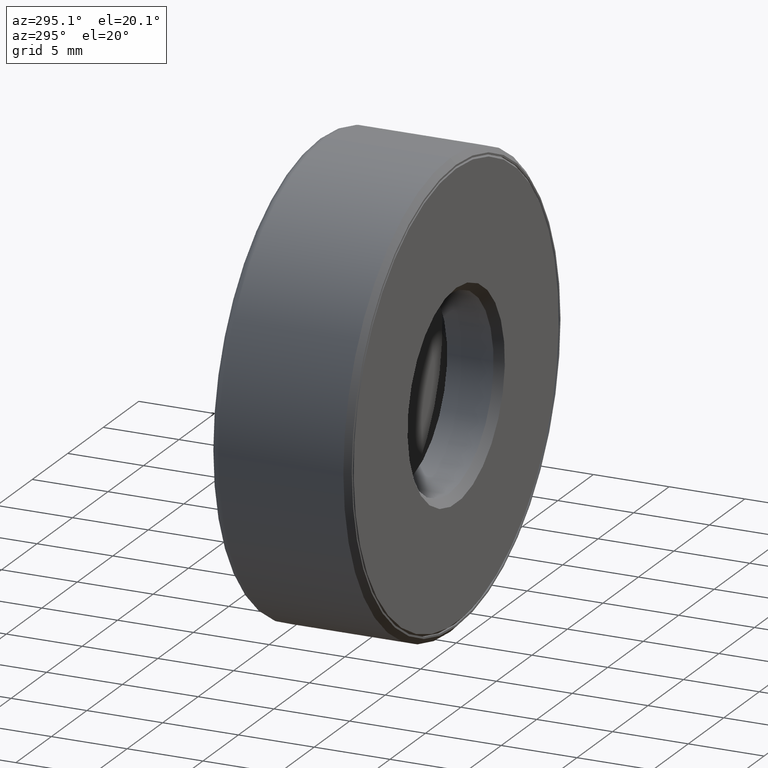
[diagram: clean part render]
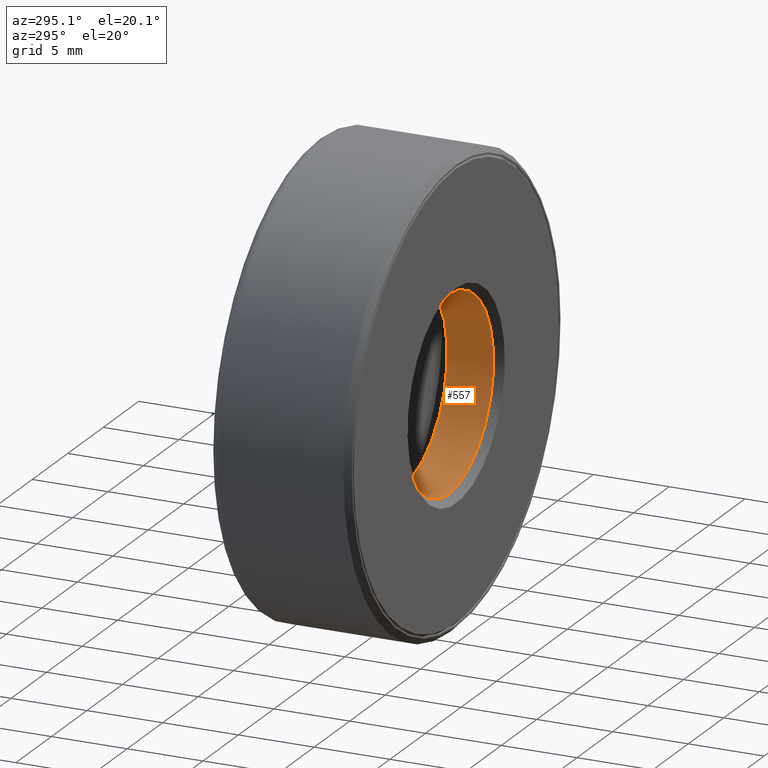
[diagram: same view with one face highlighted and labeled with its STEP entity id]
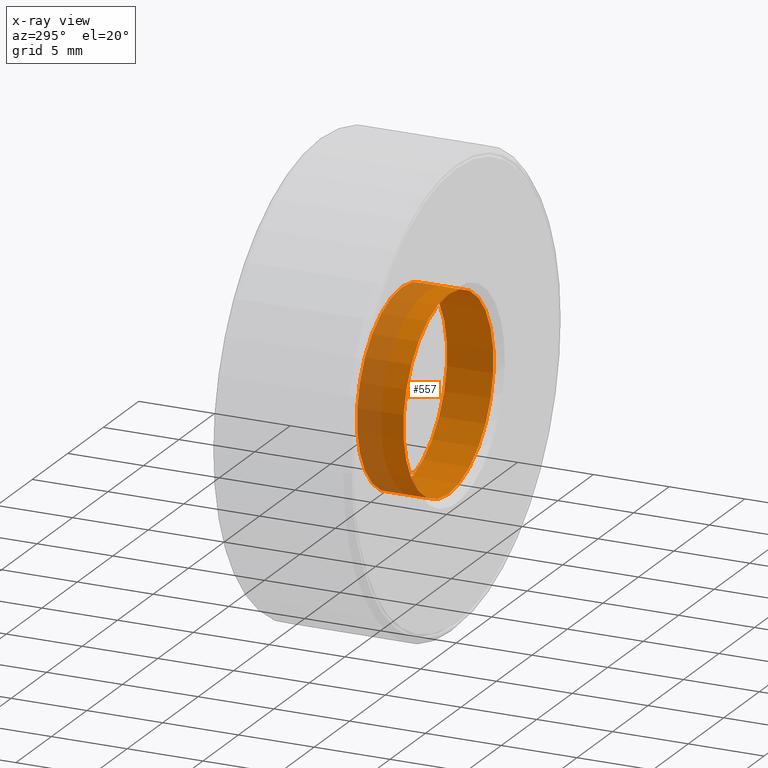
[diagram: x-ray of the same camera — body ghosted, the highlighted face saturated]
A machine part, auxiliary view. The second image highlights one B-rep face of the part: STEP entity #557.
The next image is the same camera in x-ray: the body ghosted, the highlighted face saturated — about 27% of this face is hidden behind the body in this view.
In plain terms, the highlighted cylindrical surface (bore or boss wall) has radius 6.35 mm, axis along (-0, 1, -0).
Its self-contained STEP definition (entity closure, byte-faithful):
#17 = CARTESIAN_POINT ( 'NONE',  ( 0.0000000000000000000, 0.02000000000000012900, 0.2500000000000000000 ) ) ;
#37 = VERTEX_POINT ( 'NONE', #405 ) ;
#62 = ORIENTED_EDGE ( 'NONE', *, *, #561, .T. ) ;
#85 = CIRCLE ( 'NONE', #568, 0.2500000000000000000 ) ;
#106 = DIRECTION ( 'NONE',  ( 0.0000000000000000000, 0.0000000000000000000, 1.000000000000000000 ) ) ;
#132 = AXIS2_PLACEMENT_3D ( 'NONE', #163, #354, #587 ) ;
#160 = DIRECTION ( 'NONE',  ( 0.0000000000000000000, 0.0000000000000000000, 1.000000000000000000 ) ) ;
#163 = CARTESIAN_POINT ( 'NONE',  ( 0.0000000000000000000, 0.0000000000000000000, 0.0000000000000000000 ) ) ;
#194 = CARTESIAN_POINT ( 'NONE',  ( 0.0000000000000000000, 0.02000000000000012900, 0.0000000000000000000 ) ) ;
#220 = CYLINDRICAL_SURFACE ( 'NONE', #132, 0.2500000000000000000 ) ;
#247 = FACE_OUTER_BOUND ( 'NONE', #475, .T. ) ;
#303 = EDGE_LOOP ( 'NONE', ( #62 ) ) ;
#307 = DIRECTION ( 'NONE',  ( -0.0000000000000000000, 1.000000000000000000, -0.0000000000000000000 ) ) ;
#332 = VERTEX_POINT ( 'NONE', #17 ) ;
#354 = DIRECTION ( 'NONE',  ( -0.0000000000000000000, 1.000000000000000000, -0.0000000000000000000 ) ) ;
#387 = ORIENTED_EDGE ( 'NONE', *, *, #477, .F. ) ;
#405 = CARTESIAN_POINT ( 'NONE',  ( 0.0000000000000000000, 0.1406250000000000800, 0.2500000000000000000 ) ) ;
#417 = FACE_OUTER_BOUND ( 'NONE', #303, .T. ) ;
#427 = AXIS2_PLACEMENT_3D ( 'NONE', #194, #565, #106 ) ;
#439 = CARTESIAN_POINT ( 'NONE',  ( 0.0000000000000000000, 0.1406250000000000800, 0.0000000000000000000 ) ) ;
#475 = EDGE_LOOP ( 'NONE', ( #387 ) ) ;
#477 = EDGE_CURVE ( 'NONE', #332, #332, #583, .T. ) ;
#557 = ADVANCED_FACE ( 'NONE', ( #247, #417 ), #220, .F. ) ;
#561 = EDGE_CURVE ( 'NONE', #37, #37, #85, .T. ) ;
#565 = DIRECTION ( 'NONE',  ( -0.0000000000000000000, 1.000000000000000000, -0.0000000000000000000 ) ) ;
#568 = AXIS2_PLACEMENT_3D ( 'NONE', #439, #307, #160 ) ;
#583 = CIRCLE ( 'NONE', #427, 0.2500000000000000000 ) ;
#587 = DIRECTION ( 'NONE',  ( 0.0000000000000000000, 0.0000000000000000000, 1.000000000000000000 ) ) ;